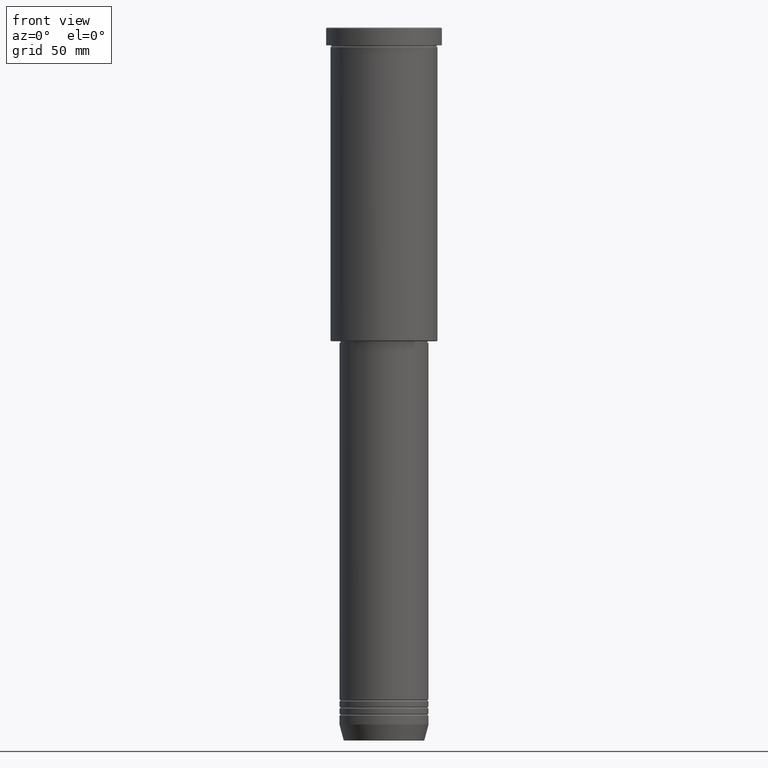
[diagram: clean part render]
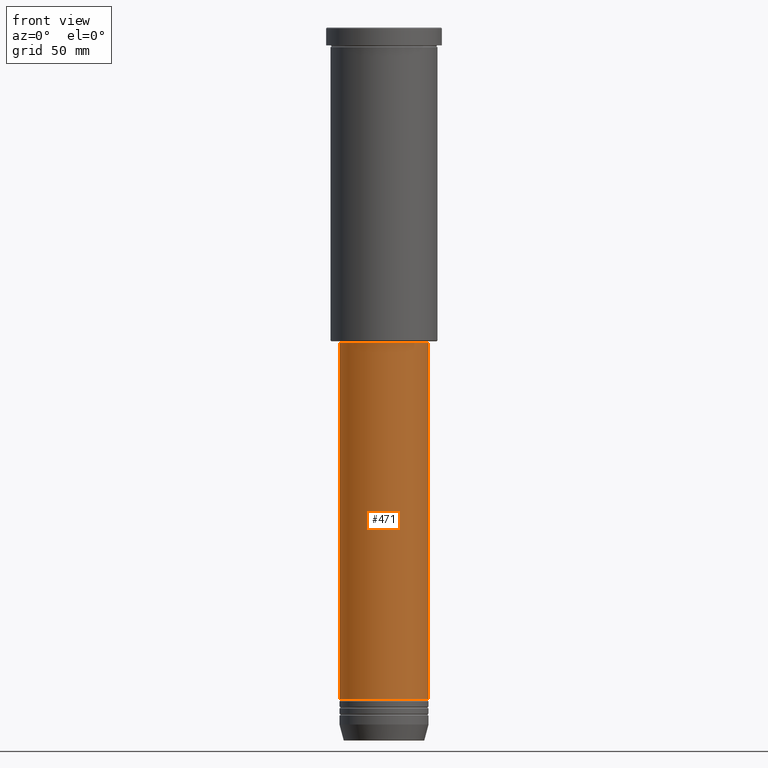
[diagram: same view with one face highlighted and labeled with its STEP entity id]
A machine part, front view. The second image highlights one B-rep face of the part: STEP entity #471.
In plain terms, the highlighted cylindrical surface (partial cylindrical patch) has radius 25 mm, axis along (-0, -0, 1).
Its self-contained STEP definition (entity closure, byte-faithful):
#1 = DIRECTION ( 'NONE',  ( -0.000000000000000000, -0.000000000000000000, 1.000000000000000000 ) ) ;
#31 = ORIENTED_EDGE ( 'NONE', *, *, #458, .T. ) ;
#33 = CIRCLE ( 'NONE', #325, 25.00000000000000711 ) ;
#43 = VECTOR ( 'NONE', #978, 1000.000000000000000 ) ;
#76 = ORIENTED_EDGE ( 'NONE', *, *, #1060, .T. ) ;
#99 = EDGE_CURVE ( 'NONE', #249, #845, #608, .T. ) ;
#172 = DIRECTION ( 'NONE',  ( 1.000000000000000000, 0.000000000000000000, 0.000000000000000000 ) ) ;
#209 = DIRECTION ( 'NONE',  ( 1.000000000000000000, 0.000000000000000000, 0.000000000000000000 ) ) ;
#246 = ORIENTED_EDGE ( 'NONE', *, *, #99, .F. ) ;
#249 = VERTEX_POINT ( 'NONE', #732 ) ;
#260 = FACE_OUTER_BOUND ( 'NONE', #390, .T. ) ;
#285 = CARTESIAN_POINT ( 'NONE',  ( 25.00000000000000711, 0.000000000000000000, -176.9999999999999147 ) ) ;
#325 = AXIS2_PLACEMENT_3D ( 'NONE', #666, #760, #209 ) ;
#335 = CYLINDRICAL_SURFACE ( 'NONE', #829, 25.00000000000000355 ) ;
#390 = EDGE_LOOP ( 'NONE', ( #246, #31, #76, #818 ) ) ;
#408 = VECTOR ( 'NONE', #1, 1000.000000000000000 ) ;
#451 = CARTESIAN_POINT ( 'NONE',  ( 25.00000000000000355, 0.000000000000000000, 0.000000000000000000 ) ) ;
#458 = EDGE_CURVE ( 'NONE', #249, #678, #1003, .T. ) ;
#471 = ADVANCED_FACE ( 'NONE', ( #260 ), #335, .T. ) ;
#526 = DIRECTION ( 'NONE',  ( 1.000000000000000000, 0.000000000000000000, 0.000000000000000000 ) ) ;
#608 = LINE ( 'NONE', #774, #43 ) ;
#619 = DIRECTION ( 'NONE',  ( -0.000000000000000000, -0.000000000000000000, 1.000000000000000000 ) ) ;
#666 = CARTESIAN_POINT ( 'NONE',  ( 0.000000000000000000, 0.000000000000000000, -176.9999999999999147 ) ) ;
#678 = VERTEX_POINT ( 'NONE', #839 ) ;
#710 = AXIS2_PLACEMENT_3D ( 'NONE', #1168, #815, #172 ) ;
#732 = CARTESIAN_POINT ( 'NONE',  ( -25.00000000000000000, 3.061616997868383437E-15, -377.0000000000000000 ) ) ;
#760 = DIRECTION ( 'NONE',  ( -0.000000000000000000, -0.000000000000000000, 1.000000000000000000 ) ) ;
#774 = CARTESIAN_POINT ( 'NONE',  ( -25.00000000000000355, 3.061616997868383437E-15, 0.000000000000000000 ) ) ;
#781 = EDGE_CURVE ( 'NONE', #845, #1056, #33, .T. ) ;
#815 = DIRECTION ( 'NONE',  ( -0.000000000000000000, -0.000000000000000000, 1.000000000000000000 ) ) ;
#818 = ORIENTED_EDGE ( 'NONE', *, *, #781, .F. ) ;
#829 = AXIS2_PLACEMENT_3D ( 'NONE', #1143, #619, #526 ) ;
#839 = CARTESIAN_POINT ( 'NONE',  ( 25.00000000000000000, 0.000000000000000000, -377.0000000000000000 ) ) ;
#845 = VERTEX_POINT ( 'NONE', #893 ) ;
#893 = CARTESIAN_POINT ( 'NONE',  ( -25.00000000000001066, 3.061616997868384226E-15, -176.9999999999999147 ) ) ;
#978 = DIRECTION ( 'NONE',  ( -0.000000000000000000, -0.000000000000000000, 1.000000000000000000 ) ) ;
#1003 = CIRCLE ( 'NONE', #710, 25.00000000000000000 ) ;
#1056 = VERTEX_POINT ( 'NONE', #285 ) ;
#1060 = EDGE_CURVE ( 'NONE', #678, #1056, #1097, .T. ) ;
#1097 = LINE ( 'NONE', #451, #408 ) ;
#1143 = CARTESIAN_POINT ( 'NONE',  ( 0.000000000000000000, 0.000000000000000000, 0.000000000000000000 ) ) ;
#1168 = CARTESIAN_POINT ( 'NONE',  ( 0.000000000000000000, 0.000000000000000000, -377.0000000000000000 ) ) ;